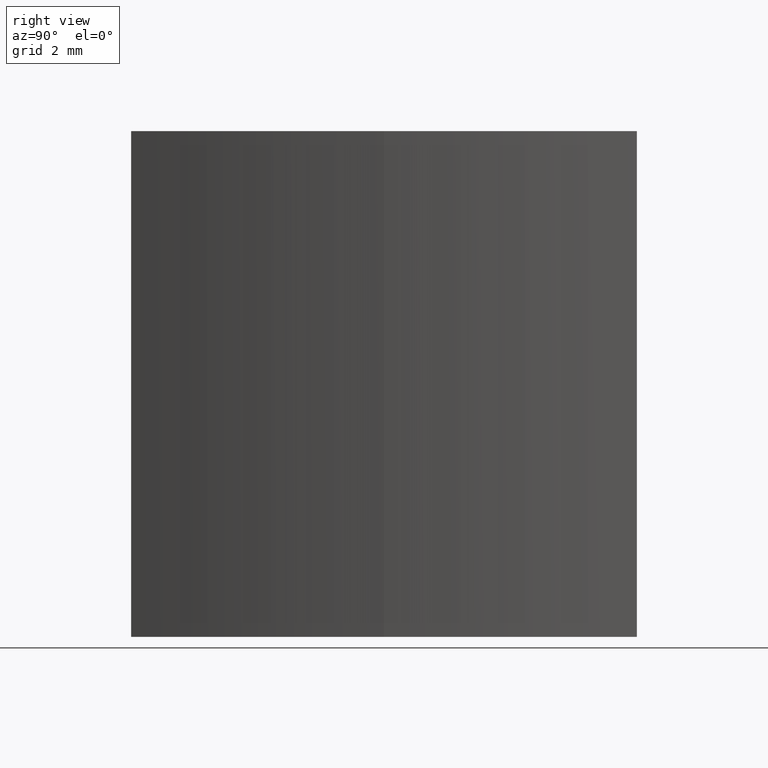
[diagram: clean part render]
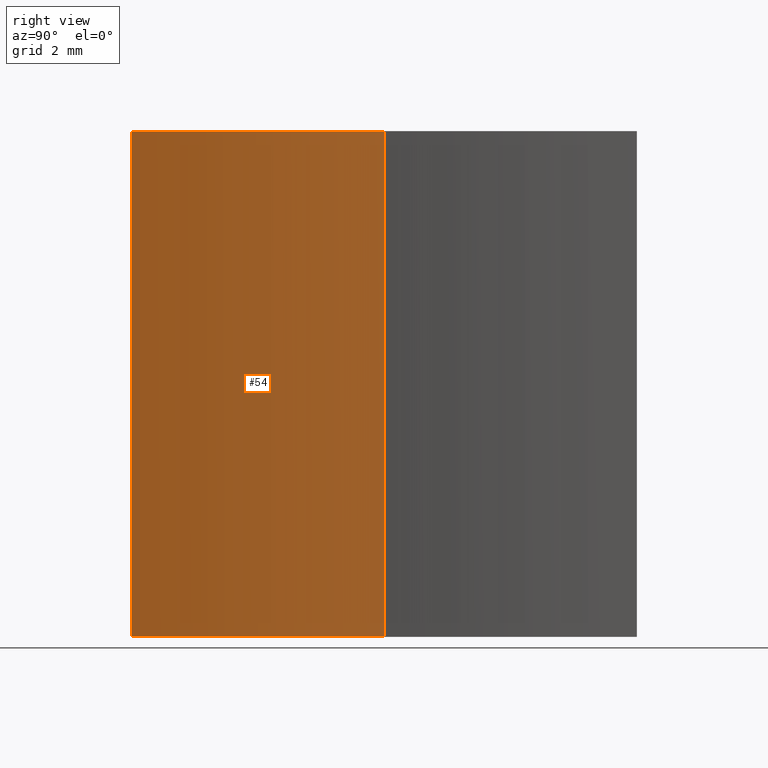
[diagram: same view with one face highlighted and labeled with its STEP entity id]
A machine part, right view. The second image highlights one B-rep face of the part: STEP entity #54.
In plain terms, the highlighted cylindrical surface (partial cylindrical patch) has radius 25 mm, axis along (-0, -0, -1).
Its self-contained STEP definition (entity closure, byte-faithful):
#1 = VERTEX_POINT ( 'NONE', #205 ) ;
#2 = CYLINDRICAL_SURFACE ( 'NONE', #114, 24.99999999999996800 ) ;
#10 = CARTESIAN_POINT ( 'NONE',  ( 146.1474219018447200, 27.17896463388355200, 0.0000000000000000000 ) ) ;
#18 = ORIENTED_EDGE ( 'NONE', *, *, #50, .T. ) ;
#29 = CARTESIAN_POINT ( 'NONE',  ( 170.3535678156410400, 33.42896463388354500, 12.50000000000000000 ) ) ;
#36 = VERTEX_POINT ( 'NONE', #42 ) ;
#42 = CARTESIAN_POINT ( 'NONE',  ( 146.1474219018447200, 27.17896463388355200, 12.50000000000000000 ) ) ;
#43 = DIRECTION ( 'NONE',  ( -1.000000000000000000, 0.0000000000000000000, 0.0000000000000000000 ) ) ;
#50 = EDGE_CURVE ( 'NONE', #36, #173, #212, .T. ) ;
#52 = DIRECTION ( 'NONE',  ( -0.0000000000000000000, -0.0000000000000000000, -1.000000000000000000 ) ) ;
#54 = ADVANCED_FACE ( 'NONE', ( #104 ), #2, .F. ) ;
#60 = VERTEX_POINT ( 'NONE', #66 ) ;
#65 = DIRECTION ( 'NONE',  ( -0.0000000000000000000, -0.0000000000000000000, -1.000000000000000000 ) ) ;
#66 = CARTESIAN_POINT ( 'NONE',  ( 145.3535678156410700, 33.42896463388354500, 0.0000000000000000000 ) ) ;
#70 = CIRCLE ( 'NONE', #132, 24.99999999999996800 ) ;
#77 = EDGE_CURVE ( 'NONE', #1, #60, #101, .T. ) ;
#80 = EDGE_CURVE ( 'NONE', #36, #1, #143, .T. ) ;
#81 = EDGE_CURVE ( 'NONE', #173, #60, #70, .T. ) ;
#84 = DIRECTION ( 'NONE',  ( -0.0000000000000000000, -0.0000000000000000000, -1.000000000000000000 ) ) ;
#86 = CARTESIAN_POINT ( 'NONE',  ( 145.3535678156410700, 33.42896463388354500, 12.50000000000000000 ) ) ;
#94 = ORIENTED_EDGE ( 'NONE', *, *, #81, .T. ) ;
#101 = LINE ( 'NONE', #86, #232 ) ;
#104 = FACE_OUTER_BOUND ( 'NONE', #176, .T. ) ;
#106 = ORIENTED_EDGE ( 'NONE', *, *, #80, .F. ) ;
#107 = CARTESIAN_POINT ( 'NONE',  ( 146.1474219018447200, 27.17896463388355200, 12.50000000000000000 ) ) ;
#114 = AXIS2_PLACEMENT_3D ( 'NONE', #164, #65, #43 ) ;
#130 = DIRECTION ( 'NONE',  ( -0.0000000000000000000, -0.0000000000000000000, -1.000000000000000000 ) ) ;
#132 = AXIS2_PLACEMENT_3D ( 'NONE', #194, #130, #233 ) ;
#143 = CIRCLE ( 'NONE', #144, 24.99999999999996800 ) ;
#144 = AXIS2_PLACEMENT_3D ( 'NONE', #29, #52, #149 ) ;
#147 = DIRECTION ( 'NONE',  ( -0.0000000000000000000, -0.0000000000000000000, -1.000000000000000000 ) ) ;
#149 = DIRECTION ( 'NONE',  ( 1.000000000000000000, 0.0000000000000000000, 0.0000000000000000000 ) ) ;
#164 = CARTESIAN_POINT ( 'NONE',  ( 170.3535678156410400, 33.42896463388354500, 12.50000000000000000 ) ) ;
#173 = VERTEX_POINT ( 'NONE', #10 ) ;
#176 = EDGE_LOOP ( 'NONE', ( #215, #106, #18, #94 ) ) ;
#193 = VECTOR ( 'NONE', #84, 1000.000000000000000 ) ;
#194 = CARTESIAN_POINT ( 'NONE',  ( 170.3535678156410400, 33.42896463388354500, 0.0000000000000000000 ) ) ;
#205 = CARTESIAN_POINT ( 'NONE',  ( 145.3535678156410700, 33.42896463388354500, 12.50000000000000000 ) ) ;
#212 = LINE ( 'NONE', #107, #193 ) ;
#215 = ORIENTED_EDGE ( 'NONE', *, *, #77, .F. ) ;
#232 = VECTOR ( 'NONE', #147, 1000.000000000000000 ) ;
#233 = DIRECTION ( 'NONE',  ( 1.000000000000000000, 0.0000000000000000000, 0.0000000000000000000 ) ) ;